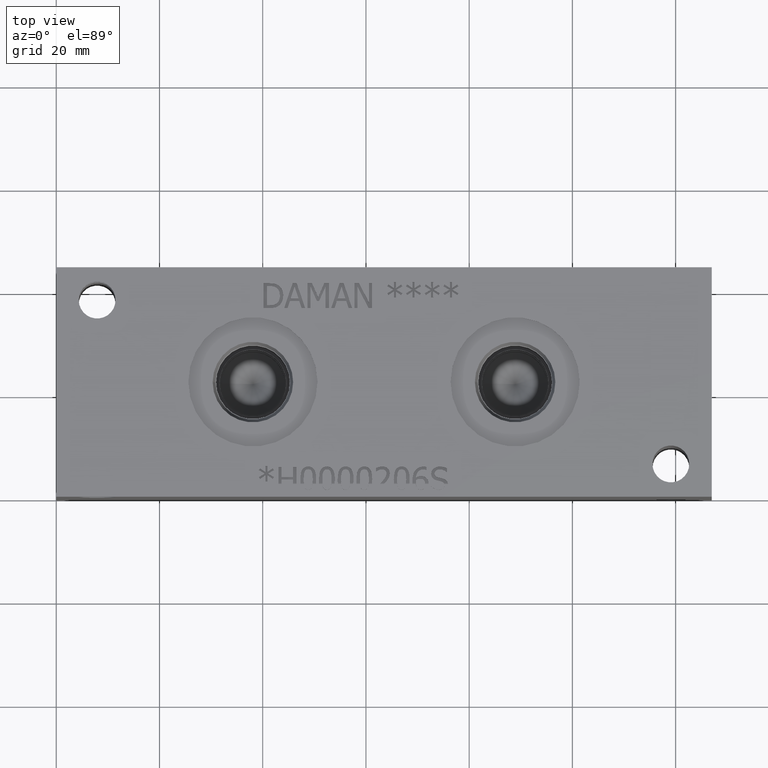
[diagram: clean part render]
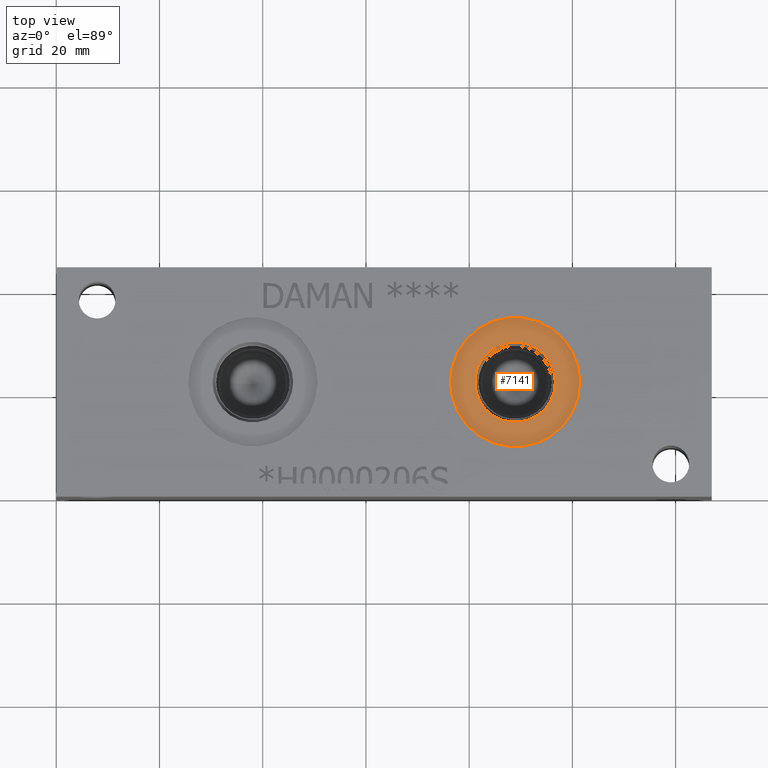
[diagram: same view with one face highlighted and labeled with its STEP entity id]
A machine part, top view. The second image highlights one B-rep face of the part: STEP entity #7141.
In plain terms, the highlighted planar face has unit normal (0, 0, -1).
Its self-contained STEP definition (entity closure, byte-faithful):
#131=CIRCLE('',#7479,12.5095);
#132=CIRCLE('',#7480,12.5095);
#133=CIRCLE('',#7482,7.79780000000001);
#134=CIRCLE('',#7483,7.79780000000001);
#193=FACE_BOUND('',#1293,.T.);
#890=FACE_OUTER_BOUND('',#1292,.T.);
#1292=EDGE_LOOP('',(#6181,#6182));
#1293=EDGE_LOOP('',(#6183,#6184));
#3288=VERTEX_POINT('',#12296);
#3289=VERTEX_POINT('',#12298);
#3290=VERTEX_POINT('',#12302);
#3291=VERTEX_POINT('',#12303);
#4264=EDGE_CURVE('',#3288,#3289,#131,.T.);
#4265=EDGE_CURVE('',#3289,#3288,#132,.T.);
#4266=EDGE_CURVE('',#3290,#3291,#133,.T.);
#4267=EDGE_CURVE('',#3291,#3290,#134,.T.);
#6181=ORIENTED_EDGE('',*,*,#4265,.F.);
#6182=ORIENTED_EDGE('',*,*,#4264,.F.);
#6183=ORIENTED_EDGE('',*,*,#4266,.T.);
#6184=ORIENTED_EDGE('',*,*,#4267,.T.);
#6489=PLANE('',#7481);
#7141=ADVANCED_FACE('',(#890,#193),#6489,.F.);
#7479=AXIS2_PLACEMENT_3D('',#12299,#8778,#8779);
#7480=AXIS2_PLACEMENT_3D('',#12300,#8780,#8781);
#7481=AXIS2_PLACEMENT_3D('',#12301,#8782,#8783);
#7482=AXIS2_PLACEMENT_3D('',#12304,#8784,#8785);
#7483=AXIS2_PLACEMENT_3D('',#12305,#8786,#8787);
#8778=DIRECTION('center_axis',(0.,0.,-1.));
#8779=DIRECTION('ref_axis',(1.,0.,0.));
#8780=DIRECTION('center_axis',(0.,0.,-1.));
#8781=DIRECTION('ref_axis',(1.,0.,0.));
#8782=DIRECTION('center_axis',(0.,0.,-1.));
#8783=DIRECTION('ref_axis',(-1.,0.,0.));
#8784=DIRECTION('center_axis',(0.,0.,-1.));
#8785=DIRECTION('ref_axis',(1.,0.,0.));
#8786=DIRECTION('center_axis',(0.,0.,-1.));
#8787=DIRECTION('ref_axis',(1.,0.,0.));
#12296=CARTESIAN_POINT('',(76.3905,22.225,43.6626));
#12298=CARTESIAN_POINT('',(101.4095,22.225,43.6626));
#12299=CARTESIAN_POINT('Origin',(88.9,22.225,43.6626));
#12300=CARTESIAN_POINT('Origin',(88.9,22.225,43.6626));
#12301=CARTESIAN_POINT('Origin',(96.6978,22.225,43.6626));
#12302=CARTESIAN_POINT('',(96.6978,22.225,43.6626));
#12303=CARTESIAN_POINT('',(81.1022,22.225,43.6626));
#12304=CARTESIAN_POINT('Origin',(88.9,22.225,43.6626));
#12305=CARTESIAN_POINT('Origin',(88.9,22.225,43.6626));